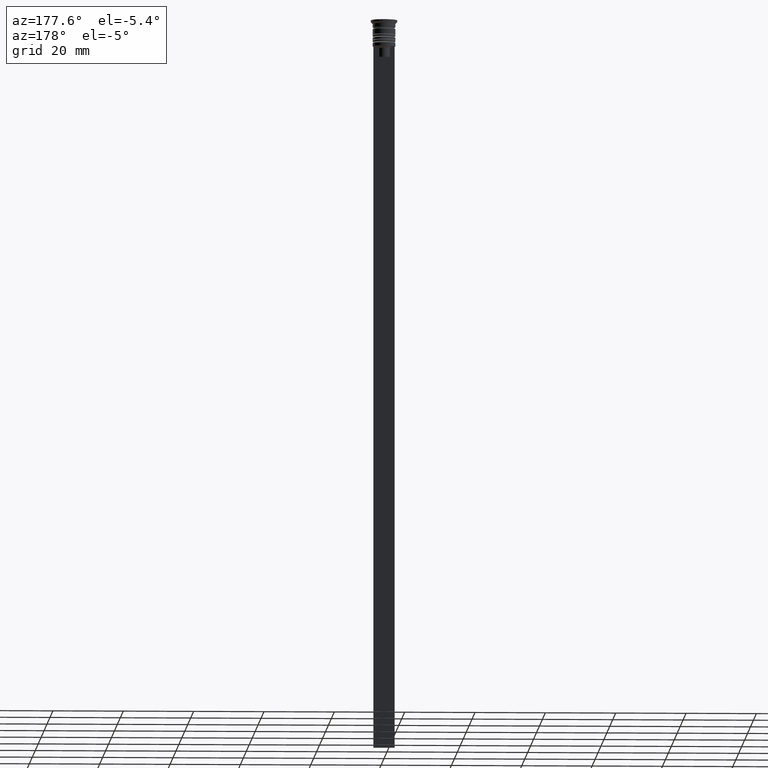
[diagram: clean part render]
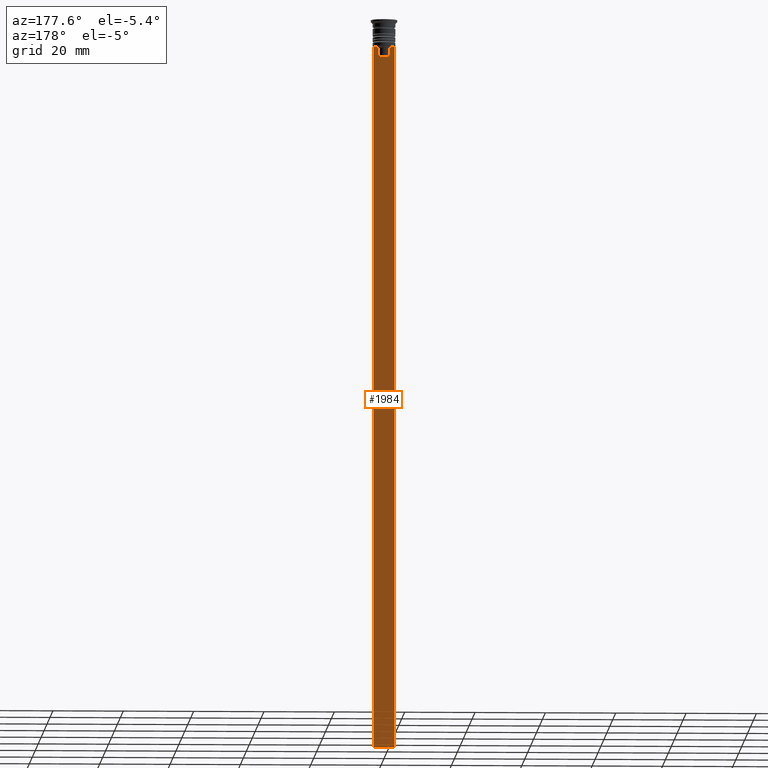
[diagram: same view with one face highlighted and labeled with its STEP entity id]
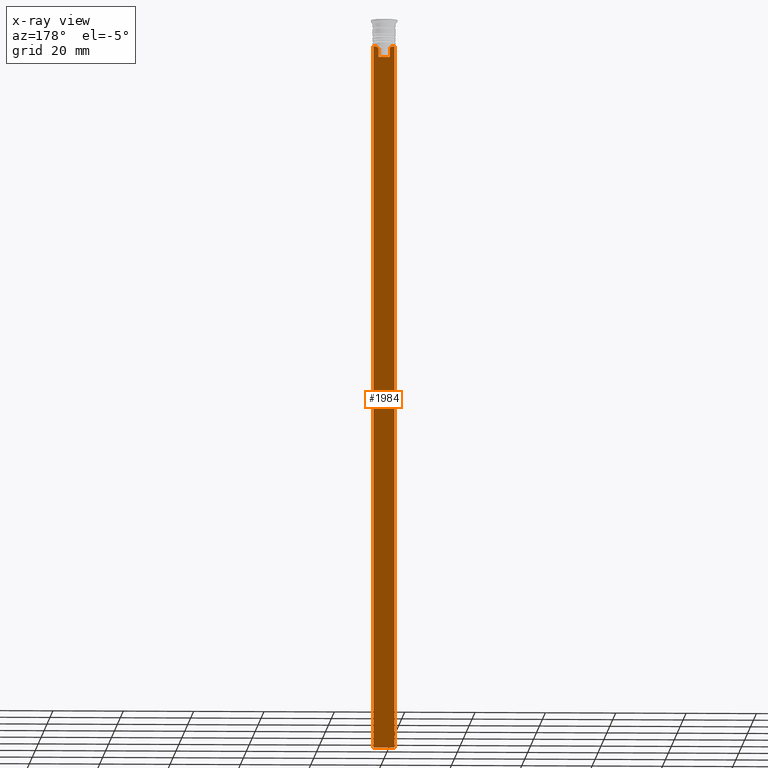
[diagram: x-ray of the same camera — body ghosted, the highlighted face saturated]
A machine part, auxiliary view. The second image highlights one B-rep face of the part: STEP entity #1984.
The next image is the same camera in x-ray: the body ghosted, the highlighted face saturated — about 0% of this face is hidden behind the body in this view.
In plain terms, the highlighted planar face has unit normal (0, -1, -0).
Its self-contained STEP definition (entity closure, byte-faithful):
#22 = ORIENTED_EDGE ( 'NONE', *, *, #2143, .T. ) ;
#116 = CARTESIAN_POINT ( 'NONE',  ( 0.000000000000000000, 0.3500000000000000333, -10.49999999999999822 ) ) ;
#119 = LINE ( 'NONE', #1598, #1186 ) ;
#194 = CARTESIAN_POINT ( 'NONE',  ( -2.121320343559647270, 0.3500000000000000333, -7.500000000000000000 ) ) ;
#211 = VERTEX_POINT ( 'NONE', #271 ) ;
#227 = VERTEX_POINT ( 'NONE', #1934 ) ;
#271 = CARTESIAN_POINT ( 'NONE',  ( -2.121320343559647270, 0.3500000000000000333, -7.500000000000000000 ) ) ;
#310 = VERTEX_POINT ( 'NONE', #1674 ) ;
#320 = DIRECTION ( 'NONE',  ( 1.000000000000000000, 0.000000000000000000, 0.000000000000000000 ) ) ;
#351 = EDGE_CURVE ( 'NONE', #1959, #310, #494, .T. ) ;
#453 = CARTESIAN_POINT ( 'NONE',  ( 1.612451549659713601, 0.3500000000000000333, -8.000000000000000000 ) ) ;
#475 = LINE ( 'NONE', #821, #1756 ) ;
#494 = LINE ( 'NONE', #1837, #1599 ) ;
#498 = CARTESIAN_POINT ( 'NONE',  ( 1.782523989086206795, 0.3500000000000000333, -7.833797837268088315 ) ) ;
#506 = DIRECTION ( 'NONE',  ( 0.000000000000000000, 0.000000000000000000, -1.000000000000000000 ) ) ;
#518 = VECTOR ( 'NONE', #2129, 1000.000000000000000 ) ;
#573 = CARTESIAN_POINT ( 'NONE',  ( -1.612451549659713601, 0.3500000000000000333, -8.000000000000000000 ) ) ;
#583 = CARTESIAN_POINT ( 'NONE',  ( 1.612451549659713601, 0.3500000000000000333, 0.000000000000000000 ) ) ;
#589 = DIRECTION ( 'NONE',  ( 0.000000000000000000, 0.000000000000000000, -1.000000000000000000 ) ) ;
#624 = EDGE_CURVE ( 'NONE', #227, #211, #743, .T. ) ;
#668 = ORIENTED_EDGE ( 'NONE', *, *, #1997, .T. ) ;
#708 = CARTESIAN_POINT ( 'NONE',  ( -1.612451549659713601, 0.3500000000000000333, -8.000000000000000000 ) ) ;
#732 = EDGE_CURVE ( 'NONE', #1862, #1141, #849, .T. ) ;
#733 = PLANE ( 'NONE',  #1464 ) ;
#737 = LINE ( 'NONE', #583, #1428 ) ;
#739 = CARTESIAN_POINT ( 'NONE',  ( -3.000000000000004441, 0.3500000000000000333, -207.5000000000000284 ) ) ;
#743 = LINE ( 'NONE', #1933, #1921 ) ;
#746 = VERTEX_POINT ( 'NONE', #2130 ) ;
#800 = CARTESIAN_POINT ( 'NONE',  ( 2.121320343559647270, 0.3500000000000000333, -7.500000000000000000 ) ) ;
#804 = EDGE_CURVE ( 'NONE', #211, #906, #1620, .T. ) ;
#818 = CARTESIAN_POINT ( 'NONE',  ( 1.612451549659713601, 0.3500000000000000333, -10.49999999999999822 ) ) ;
#820 = VERTEX_POINT ( 'NONE', #739 ) ;
#821 = CARTESIAN_POINT ( 'NONE',  ( -3.000000000000004441, 0.3500000000000000333, -1.459304675784417915 ) ) ;
#849 = LINE ( 'NONE', #116, #1817 ) ;
#903 = VECTOR ( 'NONE', #506, 1000.000000000000000 ) ;
#906 = VERTEX_POINT ( 'NONE', #708 ) ;
#925 = CARTESIAN_POINT ( 'NONE',  ( 1.612451549659713601, 0.3500000000000000333, -8.000000000000000000 ) ) ;
#943 = ORIENTED_EDGE ( 'NONE', *, *, #804, .T. ) ;
#1041 = VERTEX_POINT ( 'NONE', #925 ) ;
#1120 = ORIENTED_EDGE ( 'NONE', *, *, #1408, .T. ) ;
#1132 = CARTESIAN_POINT ( 'NONE',  ( 1.952040775369266346, 0.3500000000000000333, -7.667021484535463394 ) ) ;
#1141 = VERTEX_POINT ( 'NONE', #818 ) ;
#1186 = VECTOR ( 'NONE', #1452, 1000.000000000000000 ) ;
#1236 = CARTESIAN_POINT ( 'NONE',  ( 2.999999999999995559, 0.3500000000000000333, -207.5000000000000284 ) ) ;
#1320 = CARTESIAN_POINT ( 'NONE',  ( -1.612451549659713601, 0.3500000000000000333, 0.000000000000000000 ) ) ;
#1340 = LINE ( 'NONE', #1320, #903 ) ;
#1396 = CARTESIAN_POINT ( 'NONE',  ( -1.612451549659713601, 0.3500000000000000333, -10.49999999999999822 ) ) ;
#1408 = EDGE_CURVE ( 'NONE', #1141, #1041, #737, .T. ) ;
#1416 = DIRECTION ( 'NONE',  ( 1.000000000000000000, 0.000000000000000000, 0.000000000000000000 ) ) ;
#1417 = EDGE_CURVE ( 'NONE', #310, #746, #119, .T. ) ;
#1428 = VECTOR ( 'NONE', #1792, 1000.000000000000000 ) ;
#1448 = CARTESIAN_POINT ( 'NONE',  ( 2.999999999999995559, 0.3500000000000000333, -1.459304675784417915 ) ) ;
#1452 = DIRECTION ( 'NONE',  ( 0.000000000000000000, 0.000000000000000000, -1.000000000000000000 ) ) ;
#1464 = AXIS2_PLACEMENT_3D ( 'NONE', #1448, #1941, #589 ) ;
#1513 = ORIENTED_EDGE ( 'NONE', *, *, #1677, .T. ) ;
#1539 = CARTESIAN_POINT ( 'NONE',  ( -1.782527878033863589, 0.3500000000000000333, -7.833794036819862860 ) ) ;
#1576 = ORIENTED_EDGE ( 'NONE', *, *, #732, .T. ) ;
#1584 = CARTESIAN_POINT ( 'NONE',  ( 2.121320343559647270, 0.3500000000000000333, -7.500000000000000000 ) ) ;
#1598 = CARTESIAN_POINT ( 'NONE',  ( 2.999999999999995559, 0.3500000000000000333, -1.459304675784417915 ) ) ;
#1599 = VECTOR ( 'NONE', #1667, 1000.000000000000000 ) ;
#1606 = LINE ( 'NONE', #1236, #518 ) ;
#1613 = ORIENTED_EDGE ( 'NONE', *, *, #1417, .T. ) ;
#1620 = B_SPLINE_CURVE_WITH_KNOTS ( 'NONE', 3,
 ( #194, #1732, #1539, #573 ),
 .UNSPECIFIED., .F., .F.,
 ( 4, 4 ),
 ( 0.003684653461239336628, 0.004398058763641255961 ),
 .UNSPECIFIED. ) ;
#1667 = DIRECTION ( 'NONE',  ( 1.000000000000000000, 0.000000000000000000, 0.000000000000000000 ) ) ;
#1674 = CARTESIAN_POINT ( 'NONE',  ( 2.999999999999995559, 0.3500000000000000333, -7.500000000000000000 ) ) ;
#1677 = EDGE_CURVE ( 'NONE', #906, #1862, #1340, .T. ) ;
#1688 = EDGE_LOOP ( 'NONE', ( #1980, #943, #1513, #1576, #1120, #22, #1819, #1613, #668, #1839 ) ) ;
#1732 = CARTESIAN_POINT ( 'NONE',  ( -1.952043732028445167, 0.3500000000000000333, -7.667018567316270961 ) ) ;
#1756 = VECTOR ( 'NONE', #2177, 1000.000000000000000 ) ;
#1777 = EDGE_CURVE ( 'NONE', #227, #820, #475, .T. ) ;
#1792 = DIRECTION ( 'NONE',  ( -0.000000000000000000, -0.000000000000000000, 1.000000000000000000 ) ) ;
#1817 = VECTOR ( 'NONE', #320, 1000.000000000000000 ) ;
#1819 = ORIENTED_EDGE ( 'NONE', *, *, #351, .T. ) ;
#1837 = CARTESIAN_POINT ( 'NONE',  ( 2.999999999999995559, 0.3500000000000000333, -7.500000000000000000 ) ) ;
#1839 = ORIENTED_EDGE ( 'NONE', *, *, #1777, .F. ) ;
#1862 = VERTEX_POINT ( 'NONE', #1396 ) ;
#1921 = VECTOR ( 'NONE', #1416, 1000.000000000000000 ) ;
#1933 = CARTESIAN_POINT ( 'NONE',  ( 2.999999999999995559, 0.3500000000000000333, -7.500000000000000000 ) ) ;
#1934 = CARTESIAN_POINT ( 'NONE',  ( -3.000000000000004441, 0.3499999999999999223, -7.500000000000000000 ) ) ;
#1941 = DIRECTION ( 'NONE',  ( 0.000000000000000000, -1.000000000000000000, -0.000000000000000000 ) ) ;
#1950 = FACE_OUTER_BOUND ( 'NONE', #1688, .T. ) ;
#1959 = VERTEX_POINT ( 'NONE', #1584 ) ;
#1967 = B_SPLINE_CURVE_WITH_KNOTS ( 'NONE', 3,
 ( #453, #498, #1132, #800 ),
 .UNSPECIFIED., .F., .F.,
 ( 4, 4 ),
 ( 0.008600796474521226961, 0.009317962624906524910 ),
 .UNSPECIFIED. ) ;
#1980 = ORIENTED_EDGE ( 'NONE', *, *, #624, .T. ) ;
#1984 = ADVANCED_FACE ( 'NONE', ( #1950 ), #733, .F. ) ;
#1997 = EDGE_CURVE ( 'NONE', #746, #820, #1606, .T. ) ;
#2129 = DIRECTION ( 'NONE',  ( -1.000000000000000000, 0.000000000000000000, 0.000000000000000000 ) ) ;
#2130 = CARTESIAN_POINT ( 'NONE',  ( 2.999999999999995559, 0.3500000000000000333, -207.5000000000000284 ) ) ;
#2143 = EDGE_CURVE ( 'NONE', #1041, #1959, #1967, .T. ) ;
#2177 = DIRECTION ( 'NONE',  ( 0.000000000000000000, 0.000000000000000000, -1.000000000000000000 ) ) ;